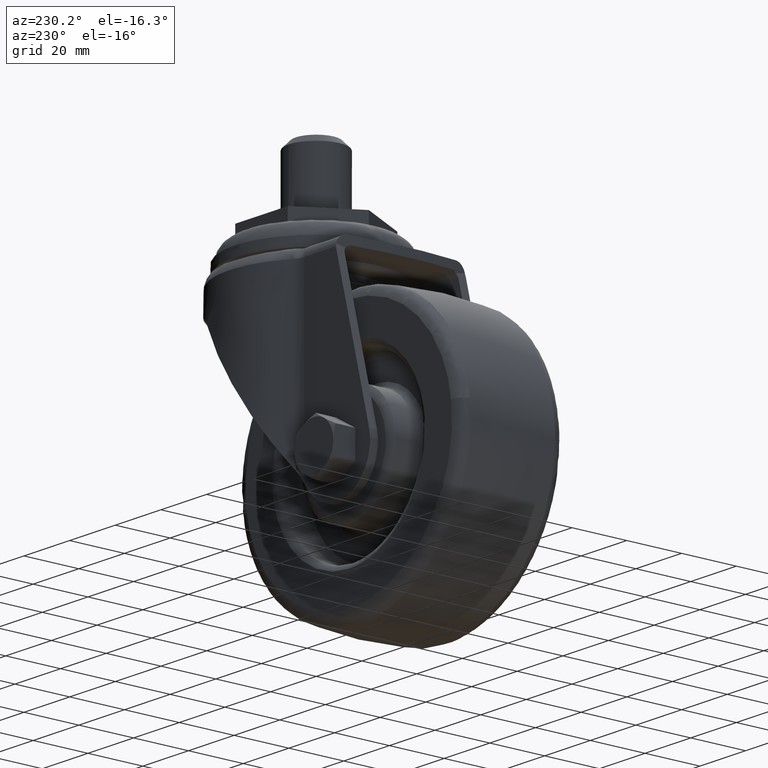
[diagram: clean part render]
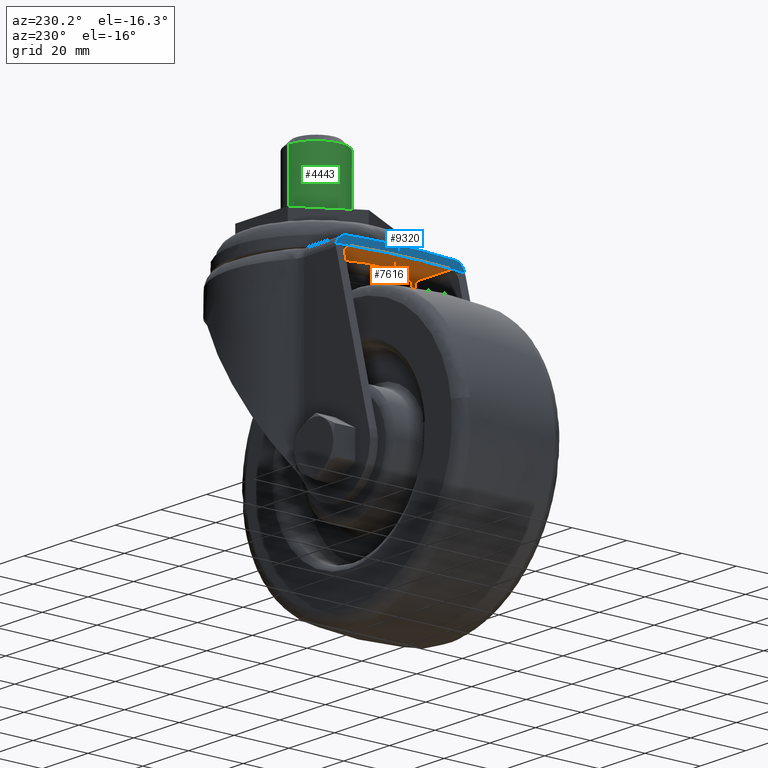
[diagram: same view with three faces highlighted in distinct colors, each labeled with its STEP entity id]
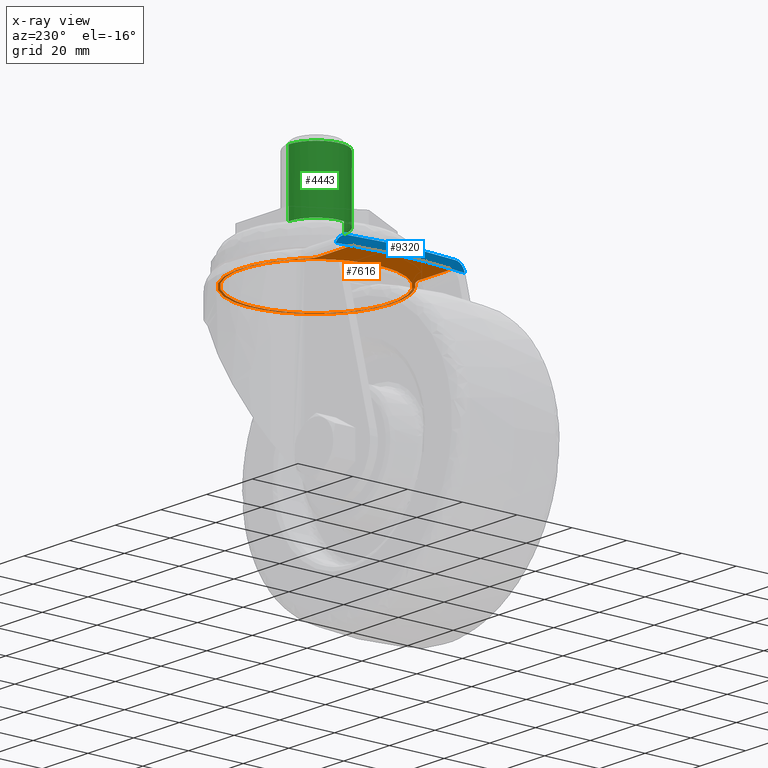
[diagram: x-ray of the same camera — body ghosted, the three highlighted faces saturated]
A machine part, auxiliary view with three faces highlighted in distinct colors.
The next image is the same camera in x-ray (body ghosted, the three faces saturated) — at least one of them is partly hidden behind the body in this view.
Their STEP definitions:

[orange] entity #7616 — the highlighted face is a freeform B-spline surface patch.
#5952=CARTESIAN_POINT('',(-22.796853988553408,14.467323464432161,-12.600000000002099));
#5953=VERTEX_POINT('',#5952);
#5967=CARTESIAN_POINT('',(27.0,1.421085E-014,-12.600000000000000));
#5968=VERTEX_POINT('',#5967);
#5969=CARTESIAN_POINT('',(-22.796853988553408,14.467323464432161,-12.600000000002099));
#5970=CARTESIAN_POINT('',(-22.020493863242969,15.690864298927000,-12.600000000002129));
#5971=CARTESIAN_POINT('',(-20.352111381234199,17.903595143512579,-12.600000000002000));
#5972=CARTESIAN_POINT('',(-17.422341330601210,20.752214060447539,-12.600000000001961));
#5973=CARTESIAN_POINT('',(-13.815082307112741,23.357379680097299,-12.600000000001851));
#5974=CARTESIAN_POINT('',(-10.007212724860461,25.205434411744289,-12.600000000001790));
#5975=CARTESIAN_POINT('',(-5.530705156512103,26.545397302356740,-12.600000000001490));
#5976=CARTESIAN_POINT('',(-1.742118387407928,27.049776726613828,-12.600000000001460));
#5977=CARTESIAN_POINT('',(2.247680131031413,26.975434499490781,-12.600000000001280));
#5978=CARTESIAN_POINT('',(5.258587569921330,26.545439318997730,-12.600000000001151));
#5979=CARTESIAN_POINT('',(8.546153651788616,25.679329694200071,-12.600000000000991));
#5980=CARTESIAN_POINT('',(12.262990242356560,24.213119278474689,-12.600000000000961));
#5981=CARTESIAN_POINT('',(16.255694175472200,21.754431939404419,-12.600000000000330));
#5982=CARTESIAN_POINT('',(19.986902765335799,18.360556670713759,-12.600000000001559));
#5983=CARTESIAN_POINT('',(22.624267085910439,14.938329951140860,-12.600000000000041));
#5984=CARTESIAN_POINT('',(24.475275970271230,11.554852887583349,-12.600000000000250));
#5985=CARTESIAN_POINT('',(25.618956882249481,8.690316943360980,-12.600000000000099));
#5986=CARTESIAN_POINT('',(26.677693325478732,4.890424133856211,-12.600000000000650));
#5987=CARTESIAN_POINT('',(27.000392518057620,1.992485687540145,-12.599999999998850));
#5988=CARTESIAN_POINT('',(27.0,1.421085E-014,-12.600000000000000));
#5989=B_SPLINE_CURVE_WITH_KNOTS('',3,(#5969,#5970,#5971,#5972,#5973,#5974,#5975,#5976,#5977,#5978,#5979,#5980,#5981,#5982,#5983,#5984,#5985,#5986,#5987,#5988),.UNSPECIFIED.,.F.,.U.,(4,1,1,1,1,1,1,1,1,1,1,1,1,1,1,1,1,4),(0.000000209517779,4.347176370044735,8.286824742924566,12.226467091906240,17.660468046819350,20.920864931117158,26.218959532733951,29.071673122288072,32.875542221319087,35.320788348848097,39.260452972143902,44.830314299170432,49.313365229695478,54.339809455076463,57.736061008023682,60.860579434036950,63.577594748134182,69.554934717325835),.UNSPECIFIED.);
#5990=EDGE_CURVE('',#5953,#5968,#5989,.T.);
#5992=CARTESIAN_POINT('',(22.796853988553408,-14.467323464432130,-12.600000000002090));
#5993=VERTEX_POINT('',#5992);
#5994=CARTESIAN_POINT('',(27.0,1.421085E-014,-12.600000000000000));
#5995=CARTESIAN_POINT('',(26.999999999999474,-7.844225131761333,-12.600000000001042));
#5996=CARTESIAN_POINT('',(22.796853988553405,-14.467323464432123,-12.600000000002098));
#6004=(BOUNDED_CURVE()B_SPLINE_CURVE(2,(#5994,#5995,#5996),.UNSPECIFIED.,.F.,.U.)B_SPLINE_CURVE_WITH_KNOTS((3,3),(0.500000000000000,0.591683542668389),.UNSPECIFIED.)CURVE()GEOMETRIC_REPRESENTATION_ITEM()RATIONAL_B_SPLINE_CURVE((1.0,0.892586048302540,0.863956829594155))REPRESENTATION_ITEM(''));
#6005=EDGE_CURVE('',#5968,#5993,#6004,.T.);
#6054=CARTESIAN_POINT('',(-27.000000000000011,1.421085E-014,-12.600000000000000));
#6055=VERTEX_POINT('',#6054);
#6056=CARTESIAN_POINT('',(22.796853988553408,-14.467323464432130,-12.600000000002090));
#6057=CARTESIAN_POINT('',(22.117513735372970,-15.537899178848560,-12.600000000002099));
#6058=CARTESIAN_POINT('',(20.580650444332662,-17.619601023281440,-12.600000000001980));
#6059=CARTESIAN_POINT('',(18.155522146054629,-20.074383251440420,-12.600000000002071));
#6060=CARTESIAN_POINT('',(15.491917200334299,-22.187721362302771,-12.600000000001851));
#6061=CARTESIAN_POINT('',(12.830230873314211,-23.837982022737691,-12.600000000001771));
#6062=CARTESIAN_POINT('',(9.984316794231031,-25.140363890608342,-12.600000000001829));
#6063=CARTESIAN_POINT('',(6.502751730525052,-26.308072938401011,-12.600000000001531));
#6064=CARTESIAN_POINT('',(2.740870965175026,-26.983354340600851,-12.600000000001470));
#6065=CARTESIAN_POINT('',(-1.842091149957168,-27.047992887530569,-12.600000000001300));
#6066=CARTESIAN_POINT('',(-5.758119558192795,-26.488765974747871,-12.600000000001090));
#6067=CARTESIAN_POINT('',(-9.187364106990724,-25.445313388153501,-12.600000000001151));
#6068=CARTESIAN_POINT('',(-12.606009180235359,-23.986068639796610,-12.599999999999850));
#6069=CARTESIAN_POINT('',(-16.026076059018500,-21.903764628620429,-12.600000000003639));
#6070=CARTESIAN_POINT('',(-19.534010614258200,-18.808283422252359,-12.599999999996060));
#6071=CARTESIAN_POINT('',(-22.155861239364469,-15.610759154115160,-12.600000000002430));
#6072=CARTESIAN_POINT('',(-24.032852100204071,-12.449593176683321,-12.599999999999820));
#6073=CARTESIAN_POINT('',(-25.349504906595300,-9.461895149826541,-12.600000000000030));
#6074=CARTESIAN_POINT('',(-26.604035698074661,-5.433711451636000,-12.600000000000669));
#6075=CARTESIAN_POINT('',(-27.000601681272130,-2.173634430688280,-12.599999999998960));
#6076=CARTESIAN_POINT('',(-27.000000000000011,1.421085E-014,-12.600000000000000));
#6077=B_SPLINE_CURVE_WITH_KNOTS('',3,(#6056,#6057,#6058,#6059,#6060,#6061,#6062,#6063,#6064,#6065,#6066,#6067,#6068,#6069,#6070,#6071,#6072,#6073,#6074,#6075,#6076),.UNSPECIFIED.,.F.,.U.,(4,1,1,1,1,1,1,1,1,1,1,1,1,1,1,1,1,1,4),(0.000000209516983,3.803776195185336,7.743424263214614,10.324583967102219,13.992542915609290,17.117088090678511,19.698197968816100,24.996379177937651,28.528278461311189,33.418920985284259,36.815189612630213,39.260452972144464,44.558614961522657,48.769966525709577,53.253019537708873,56.920977273750857,59.773823504263028,63.034231412825989,69.554934717325807),.UNSPECIFIED.);
#6078=EDGE_CURVE('',#5993,#6055,#6077,.T.);
#6080=CARTESIAN_POINT('',(-27.000000000000011,1.421085E-014,-12.600000000000000));
#6081=CARTESIAN_POINT('',(-26.999999999999474,7.844225131761364,-12.600000000001055));
#6082=CARTESIAN_POINT('',(-22.796853988553405,14.467323464432159,-12.600000000002098));
#6090=(BOUNDED_CURVE()B_SPLINE_CURVE(2,(#6080,#6081,#6082),.UNSPECIFIED.,.F.,.U.)B_SPLINE_CURVE_WITH_KNOTS((3,3),(0.0,0.091683542668389),.UNSPECIFIED.)CURVE()GEOMETRIC_REPRESENTATION_ITEM()RATIONAL_B_SPLINE_CURVE((1.0,0.892586048302540,0.863956829594155))REPRESENTATION_ITEM(''));
#6091=EDGE_CURVE('',#6055,#5953,#6090,.T.);
#6560=CARTESIAN_POINT('',(-17.206130066668312,21.820722345972001,-12.600000000000000));
#6561=VERTEX_POINT('',#6560);
#6571=CARTESIAN_POINT('',(-23.200042282470001,18.300000000000001,-12.600000000000000));
#6572=VERTEX_POINT('',#6571);
#6573=CARTESIAN_POINT('',(-23.200042282470001,18.300000000000001,-12.600000000000000));
#6574=CARTESIAN_POINT('',(-22.884882251813600,18.299940183875151,-12.600000000000010));
#6575=CARTESIAN_POINT('',(-22.551575814278301,18.338716590963390,-12.600000000000010));
#6576=CARTESIAN_POINT('',(-22.208241844122949,18.416639695658532,-12.600000000000000));
#6577=CARTESIAN_POINT('',(-22.154330177780221,18.430166216352280,-12.600000000000000));
#6578=CARTESIAN_POINT('',(-22.082265280164510,18.447542847228640,-12.600000000000000));
#6579=CARTESIAN_POINT('',(-21.813826293969271,18.520122325260811,-12.600000000000010));
#6580=CARTESIAN_POINT('',(-21.358887851152769,18.681682106491959,-12.599999999999991));
#6581=CARTESIAN_POINT('',(-20.625042223209189,19.039972527476369,-12.600000000000030));
#6582=CARTESIAN_POINT('',(-20.096129064043041,19.385467096497930,-12.599999999999980));
#6583=CARTESIAN_POINT('',(-19.695070367716490,19.684627115052638,-12.600000000000000));
#6584=CARTESIAN_POINT('',(-19.447092496409098,19.879138771761649,-12.600000000000010));
#6585=CARTESIAN_POINT('',(-19.049022093590700,20.212224120182562,-12.600000000000000));
#6586=CARTESIAN_POINT('',(-18.730012969699349,20.495027258238750,-12.600000000000000));
#6587=CARTESIAN_POINT('',(-18.440755489580209,20.755591980904772,-12.600000000000000));
#6588=CARTESIAN_POINT('',(-18.331402327849890,20.855835698957641,-12.600000000000000));
#6589=CARTESIAN_POINT('',(-18.083109963918261,21.078746932717301,-12.600000000000010));
#6590=CARTESIAN_POINT('',(-17.847672336269071,21.288154604139550,-12.599999999999961));
#6591=CARTESIAN_POINT('',(-17.510279458038621,21.577992212909582,-12.600000000000200));
#6592=CARTESIAN_POINT('',(-17.309215872006359,21.742010383455359,-12.599999999999330));
#6593=CARTESIAN_POINT('',(-17.206130066668312,21.820722345972001,-12.600000000000000));
#6594=B_SPLINE_CURVE_WITH_KNOTS('',3,(#6573,#6574,#6575,#6576,#6577,#6578,#6579,#6580,#6581,#6582,#6583,#6584,#6585,#6586,#6587,#6588,#6589,#6590,#6591,#6592,#6593),.UNSPECIFIED.,.F.,.U.,(4,1,1,1,1,1,1,1,1,1,1,1,2,2,1,1,4),(0.000027262821525,0.945294903960264,1.000816565755690,1.056417917823303,1.112019269890919,1.223222338353205,1.890429325326533,2.557741817034610,3.669735711737038,3.781033573207834,4.059129671180316,4.615055324770191,5.337985770226001,5.783012668681964,6.339025959666858,6.728270681001271,7.117337516679103),.UNSPECIFIED.);
#6595=EDGE_CURVE('',#6572,#6561,#6594,.T.);
#6670=CARTESIAN_POINT('',(-37.549176507388303,18.300000000000001,-12.600000000000000));
#6671=VERTEX_POINT('',#6670);
#6672=CARTESIAN_POINT('',(-37.549176507388303,18.300000000000001,-12.600000000000000));
#6673=CARTESIAN_POINT('',(-23.200042282470001,18.300000000000001,-12.600000000000000));
#6674=QUASI_UNIFORM_CURVE('',1,(#6672,#6673),.UNSPECIFIED.,.F.,.U.);
#6675=EDGE_CURVE('',#6671,#6572,#6674,.T.);
#6937=CARTESIAN_POINT('',(-17.206130066668312,-21.820722345971902,-12.600000000000000));
#6938=VERTEX_POINT('',#6937);
#6952=CARTESIAN_POINT('',(-17.206130066668312,21.820722345972001,-12.600000000000000));
#6953=CARTESIAN_POINT('',(-16.945764589122891,22.018787179444999,-12.600000000000000));
#6954=CARTESIAN_POINT('',(-16.682060021533228,22.212202171664551,-12.599999999999920));
#6955=CARTESIAN_POINT('',(-16.147991767696279,22.589759017543269,-12.599999999999920));
#6956=CARTESIAN_POINT('',(-15.877331097611590,22.774087133635671,-12.599999999999920));
#6957=CARTESIAN_POINT('',(-15.058670720995600,23.311024379633022,-12.599999999999920));
#6958=CARTESIAN_POINT('',(-14.503440433897840,23.648068557316360,-12.599999999999920));
#6959=CARTESIAN_POINT('',(-12.810179589844591,24.598228649842270,-12.599999999999911));
#6960=CARTESIAN_POINT('',(-11.644706699095780,25.150654426441889,-12.599999999999920));
#6961=CARTESIAN_POINT('',(-9.842272922263110,25.859372940687049,-12.599999999999920));
#6962=CARTESIAN_POINT('',(-9.232391860445548,26.075554108037299,-12.599999999999911));
#6963=CARTESIAN_POINT('',(-8.303760593585912,26.369285051617080,-12.599999999999920));
#6964=CARTESIAN_POINT('',(-7.991913145277651,26.462100630805971,-12.599999999999920));
#6965=CARTESIAN_POINT('',(-7.363550601869688,26.637409047277860,-12.599999999999911));
#6966=CARTESIAN_POINT('',(-7.046562208305985,26.719999723493061,-12.599999999999920));
#6967=CARTESIAN_POINT('',(-5.461457732187167,27.104043661741489,-12.599999999999911));
#6968=CARTESIAN_POINT('',(-4.185582268445432,27.321499657806299,-12.599999999999920));
#6969=CARTESIAN_POINT('',(-1.618806353944401,27.583291666246950,-12.599999999999911));
#6970=CARTESIAN_POINT('',(-0.327904775911057,27.627614690014749,-12.599999999999911));
#6971=CARTESIAN_POINT('',(1.295313524382467,27.572505861493529,-12.599999999999920));
#6972=CARTESIAN_POINT('',(1.620438911512220,27.555933569683560,-12.599999999999920));
#6973=CARTESIAN_POINT('',(2.108860044719857,27.522628799272830,-12.599999999999911));
#6974=CARTESIAN_POINT('',(2.271926924588069,27.510107006020000,-12.599999999999911));
#6975=CARTESIAN_POINT('',(2.597624995343788,27.482282728759571,-12.599999999999911));
#6976=CARTESIAN_POINT('',(2.760125878295762,27.466994132409560,-12.599999999999920));
#6977=CARTESIAN_POINT('',(3.570903053156702,27.383722323639510,-12.599999999999911));
#6978=CARTESIAN_POINT('',(4.214004165001446,27.295278485294329,-12.599999999999920));
#6979=CARTESIAN_POINT('',(6.127103801074773,26.965883917542570,-12.599999999999911));
#6980=CARTESIAN_POINT('',(7.380974029027525,26.661168249947590,-12.599999999999911));
#6981=CARTESIAN_POINT('',(9.229498482627639,26.076468816233380,-12.599999999999911));
#6982=CARTESIAN_POINT('',(9.840274293031412,25.860223453595250,-12.599999999999920));
#6983=CARTESIAN_POINT('',(10.748164007328720,25.503143263669529,-12.599999999999920));
#6984=CARTESIAN_POINT('',(11.049413637499059,25.378659470979461,-12.599999999999920));
#6985=CARTESIAN_POINT('',(11.499183572531930,25.183613376492499,-12.599999999999920));
#6986=CARTESIAN_POINT('',(11.648727442179190,25.117219547538600,-12.599999999999920));
#6987=CARTESIAN_POINT('',(11.945963882623470,24.982167686509481,-12.599999999999920));
#6988=CARTESIAN_POINT('',(12.093800540453170,24.913447989258660,-12.599999999999920));
#6989=CARTESIAN_POINT('',(13.417344231286201,24.284299872326130,-12.599999999999920));
#6990=CARTESIAN_POINT('',(14.544385674388639,23.649539111445581,-12.599999999999920));
#6991=CARTESIAN_POINT('',(16.701683281510292,22.232186721868260,-12.599999999999920));
#6992=CARTESIAN_POINT('',(17.731946692709531,21.449606162591579,-12.599999999999911));
#6993=CARTESIAN_POINT('',(18.834522145864039,20.482948802050331,-12.599999999999911));
#6994=CARTESIAN_POINT('',(18.956242324226171,20.374338515439600,-12.599999999999920));
#6995=CARTESIAN_POINT('',(19.198092296769090,20.154688772452680,-12.599999999999911));
#6996=CARTESIAN_POINT('',(19.318302163093549,20.043570879473201,-12.599999999999920));
#6997=CARTESIAN_POINT('',(19.675198611129382,19.707801889046671,-12.599999999999911));
#6998=CARTESIAN_POINT('',(19.908537822482000,19.480397693779729,-12.599999999999911));
#6999=CARTESIAN_POINT('',(20.594956040985149,18.787646768423532,-12.599999999999920));
#7000=CARTESIAN_POINT('',(21.034452274270208,18.311774594610409,-12.599999999999911));
#7001=CARTESIAN_POINT('',(22.299374173122612,16.842648558619189,-12.599999999999920));
#7002=CARTESIAN_POINT('',(23.071493588592730,15.808087085706640,-12.599999999999920));
#7003=CARTESIAN_POINT('',(24.121315615752859,14.172277747988300,-12.599999999999920));
#7004=CARTESIAN_POINT('',(24.453132737559660,13.612963823666281,-12.599999999999920));
#7005=CARTESIAN_POINT('',(24.844561359449671,12.895732836096320,-12.599999999999920));
#7006=CARTESIAN_POINT('',(24.921699656264099,12.751333437419749,-12.599999999999920));
#7007=CARTESIAN_POINT('',(25.073021664755331,12.461869994217009,-12.599999999999920));
#7008=CARTESIAN_POINT('',(25.295805074676821,12.026259216415340,-12.599999999999920));
#7009=CARTESIAN_POINT('',(25.506084668478479,11.586433619880459,-12.599999999999920));
#7010=CARTESIAN_POINT('',(26.179548921487129,10.111089405741421,-12.599999999999920));
#7011=CARTESIAN_POINT('',(26.630826766642329,8.901321479469033,-12.599999999999920));
#7012=CARTESIAN_POINT('',(27.177646023485270,7.042815984026421,-12.599999999999911));
#7013=CARTESIAN_POINT('',(27.338156977761319,6.415978516598328,-12.599999999999920));
#7014=CARTESIAN_POINT('',(27.545692180064162,5.464520646650132,-12.599999999999920));
#7015=CARTESIAN_POINT('',(27.609326852303191,5.145499328958640,-12.599999999999920));
#7016=CARTESIAN_POINT('',(27.696340596344118,4.664122960422994,-12.599999999999920));
#7017=CARTESIAN_POINT('',(27.723938445274470,4.503189985903486,-12.599999999999920));
#7018=CARTESIAN_POINT('',(27.776295823198900,4.180367288626679,-12.599999999999920));
#7019=CARTESIAN_POINT('',(27.801027972692541,4.018627711172342,-12.599999999999920));
#7020=CARTESIAN_POINT('',(28.009990992126401,2.564419727963117,-12.599999999999911));
#7021=CARTESIAN_POINT('',(28.100815444941109,1.273001449953279,-12.599999999999911));
#7022=CARTESIAN_POINT('',(28.099173581145472,-1.307496595043730,-12.599999999999920));
#7023=CARTESIAN_POINT('',(28.006697519157989,-2.596576237694769,-12.599999999999920));
#7024=CARTESIAN_POINT('',(27.773692298353492,-4.206427816423275,-12.599999999999920));
#7025=CARTESIAN_POINT('',(27.721193212384339,-4.528322882139623,-12.599999999999920));
#7026=CARTESIAN_POINT('',(27.633458190714268,-5.011050828031485,-12.599999999999920));
#7027=CARTESIAN_POINT('',(27.602754589425949,-5.171710228741088,-12.599999999999920));
#7028=CARTESIAN_POINT('',(27.538596930012840,-5.491759507068004,-12.599999999999920));
#7029=CARTESIAN_POINT('',(27.505121602849790,-5.651267587874124,-12.599999999999911));
#7030=CARTESIAN_POINT('',(27.330820919538539,-6.446246816741725,-12.599999999999920));
#7031=CARTESIAN_POINT('',(27.169250664337110,-7.074044516542791,-12.599999999999911));
#7032=CARTESIAN_POINT('',(26.619722436762231,-8.933461917653785,-12.599999999999911));
#7033=CARTESIAN_POINT('',(26.167256334836239,-10.141220341392421,-12.599999999999911));
#7034=CARTESIAN_POINT('',(25.359804244006970,-11.905232823215529,-12.599999999999920));
#7035=CARTESIAN_POINT('',(25.069117106461679,-12.485270747774040,-12.599999999999920));
#7036=CARTESIAN_POINT('',(24.678276742574571,-13.200152887185469,-12.599999999999920));
#7037=CARTESIAN_POINT('',(24.598732936498159,-13.342620437282291,-12.599999999999920));
#7038=CARTESIAN_POINT('',(24.436873023589509,-13.626530075440289,-12.599999999999920));
#7039=CARTESIAN_POINT('',(24.354521659746968,-13.768025220215300,-12.599999999999920));
#7040=CARTESIAN_POINT('',(24.104313826036339,-14.189245832943980,-12.599999999999920));
#7041=CARTESIAN_POINT('',(23.932989948649890,-14.466271608573280,-12.599999999999920));
#7042=CARTESIAN_POINT('',(23.054161343086289,-15.832782607969261,-12.599999999999911));
#7043=CARTESIAN_POINT('',(22.280359087898798,-16.866690940904689,-12.599999999999911));
#7044=CARTESIAN_POINT('',(20.595570852363419,-18.819507164664390,-12.599999999999920));
#7045=CARTESIAN_POINT('',(19.684582838391169,-19.738413350711351,-12.599999999999920));
#7046=CARTESIAN_POINT('',(18.457687504210082,-20.813141723353301,-12.599999999999920));
#7047=CARTESIAN_POINT('',(18.207484803090860,-21.024674913467511,-12.599999999999920));
#7048=CARTESIAN_POINT('',(17.701967592392020,-21.437109656135551,-12.599999999999920));
#7049=CARTESIAN_POINT('',(17.446289842036411,-21.638352395317650,-12.599999999999920));
#7050=CARTESIAN_POINT('',(16.670639548008680,-22.227395964147110,-12.599999999999920));
#7051=CARTESIAN_POINT('',(16.142060607412770,-22.600530287417062,-12.599999999999911));
#7052=CARTESIAN_POINT('',(14.522604604070169,-23.662471046769198,-12.599999999999920));
#7053=CARTESIAN_POINT('',(13.398166475187020,-24.294084723223339,-12.599999999999920));
#7054=CARTESIAN_POINT('',(11.644211862759001,-25.126821005326509,-12.599999999999911));
#7055=CARTESIAN_POINT('',(11.048304623461011,-25.385218472854969,-12.599999999999920));
#7056=CARTESIAN_POINT('',(10.289030586278461,-25.683692751133862,-12.599999999999920));
#7057=CARTESIAN_POINT('',(10.136337047909620,-25.742203920867961,-12.599999999999920));
#7058=CARTESIAN_POINT('',(9.830057399134928,-25.856543594331381,-12.599999999999920));
#7059=CARTESIAN_POINT('',(9.369821932272791,-26.023841013331850,-12.599999999999920));
#7060=CARTESIAN_POINT('',(8.907160856203747,-26.178617640590510,-12.599999999999911));
#7061=CARTESIAN_POINT('',(7.359646038677316,-26.667123603405368,-12.599999999999920));
#7062=CARTESIAN_POINT('',(6.104714676685428,-26.970591289398971,-12.599999999999920));
#7063=CARTESIAN_POINT('',(3.561761349507301,-27.406715736841239,-12.599999999999920));
#7064=CARTESIAN_POINT('',(2.273741429752526,-27.539383056635849,-12.599999999999920));
#7065=CARTESIAN_POINT('',(0.805441569397754,-27.589125204457559,-12.599999999999911));
#7066=CARTESIAN_POINT('',(0.641869994904814,-27.593264937801450,-12.599999999999920));
#7067=CARTESIAN_POINT('',(0.315165860765234,-27.598730430051582,-12.599999999999920));
#7068=CARTESIAN_POINT('',(-0.174277822767608,-27.602718932882372,-12.599999999999920));
#7069=CARTESIAN_POINT('',(-0.661899114340674,-27.594182428675730,-12.599999999999920));
#7070=CARTESIAN_POINT('',(-1.634743298806898,-27.560625611616199,-12.599999999999920));
#7071=CARTESIAN_POINT('',(-2.280111099156059,-27.516295752330709,-12.599999999999920));
#7072=CARTESIAN_POINT('',(-4.206772428136375,-27.318412330724389,-12.599999999999920));
#7073=CARTESIAN_POINT('',(-5.478668621377945,-27.100272392649298,-12.599999999999920));
#7074=CARTESIAN_POINT('',(-7.367450926518855,-26.642052528266589,-12.599999999999920));
#7075=CARTESIAN_POINT('',(-7.993857009363005,-26.467401832173771,-12.599999999999911));
#7076=CARTESIAN_POINT('',(-8.772765070864752,-26.220912968419618,-12.599999999999920));
#7077=CARTESIAN_POINT('',(-8.928327456507196,-26.170205350028819,-12.599999999999920));
#7078=CARTESIAN_POINT('',(-9.237832837097509,-26.066362700574381,-12.599999999999920));
#7079=CARTESIAN_POINT('',(-9.700117673562129,-25.906815297585052,-12.599999999999920));
#7080=CARTESIAN_POINT('',(-10.156527064722020,-25.736002467239999,-12.599999999999911));
#7081=CARTESIAN_POINT('',(-11.664984336596140,-25.141878116572290,-12.599999999999920));
#7082=CARTESIAN_POINT('',(-12.830631310528220,-24.587738425444460,-12.599999999999920));
#7083=CARTESIAN_POINT('',(-15.080467337718320,-23.323273726109601,-12.599999999999920));
#7084=CARTESIAN_POINT('',(-16.164672040995690,-22.612978724846119,-12.600000000000000));
#7085=CARTESIAN_POINT('',(-17.206130066668440,-21.820722345971930,-12.600000000000000));
#7086=B_SPLINE_CURVE_WITH_KNOTS('',3,(#6952,#6953,#6954,#6955,#6956,#6957,#6958,#6959,#6960,#6961,#6962,#6963,#6964,#6965,#6966,#6967,#6968,#6969,#6970,#6971,#6972,#6973,#6974,#6975,#6976,#6977,#6978,#6979,#6980,#6981,#6982,#6983,#6984,#6985,#6986,#6987,#6988,#6989,#6990,#6991,#6992,#6993,#6994,#6995,#6996,#6997,#6998,#6999,#7000,#7001,#7002,#7003,#7004,#7005,#7006,#7007,#7008,#7009,#7010,#7011,#7012,#7013,#7014,#7015,#7016,#7017,#7018,#7019,#7020,#7021,#7022,#7023,#7024,#7025,#7026,#7027,#7028,#7029,#7030,#7031,#7032,#7033,#7034,#7035,#7036,#7037,#7038,#7039,#7040,#7041,#7042,#7043,#7044,#7045,#7046,#7047,#7048,#7049,#7050,#7051,#7052,#7053,#7054,#7055,#7056,#7057,#7058,#7059,#7060,#7061,#7062,#7063,#7064,#7065,#7066,#7067,#7068,#7069,#7070,#7071,#7072,#7073,#7074,#7075,#7076,#7077,#7078,#7079,#7080,#7081,#7082,#7083,#7084,#7085),.UNSPECIFIED.,.F.,.U.,(4,2,2,2,2,2,2,2,2,2,2,2,2,2,2,2,2,2,2,2,2,2,2,2,2,2,2,2,1,2,2,2,2,2,2,2,2,2,2,2,2,2,2,2,2,2,2,2,2,2,2,2,2,2,1,2,2,2,2,1,2,2,2,2,2,1,2,2,4),(0.0,0.007812500000000,0.015625000000000,0.031250000000000,0.062499999999999,0.078124999999999,0.085937499999999,0.093749999999999,0.124999999999999,0.156249999999999,0.164062499999999,0.167968749999999,0.171874999999999,0.187499999999998,0.218749999999998,0.234374999999998,0.242187499999998,0.246093749999998,0.249999999999998,0.281249999999997,0.312499999999997,0.316406249999997,0.320312499999997,0.328124999999997,0.343749999999997,0.374999999999996,0.390624999999996,0.394531249999996,0.398437499999996,0.406249999999996,0.437499999999996,0.453124999999996,0.460937499999996,0.464843749999996,0.468749999999996,0.499999999999996,0.531249999999995,0.539062499999995,0.542968749999995,0.546874999999995,0.562499999999995,0.593749999999995,0.609374999999995,0.613281249999995,0.617187499999995,0.624999999999995,0.656249999999996,0.687499999999996,0.695312499999996,0.703124999999996,0.718749999999996,0.749999999999997,0.765624999999997,0.769531249999997,0.773437499999997,0.781249999999997,0.812499999999997,0.843749999999998,0.847656249999998,0.851562499999998,0.859374999999998,0.874999999999998,0.906249999999998,0.921874999999998,0.925781249999998,0.929687499999999,0.937499999999999,0.968749999999999,1.0),.UNSPECIFIED.);
#7087=EDGE_CURVE('',#6561,#6938,#7086,.T.);
#7147=CARTESIAN_POINT('',(-23.200042282470051,-18.300000000000001,-12.600000000000000));
#7148=VERTEX_POINT('',#7147);
#7162=CARTESIAN_POINT('',(-17.206130066668312,-21.820722345971902,-12.600000000000000));
#7163=CARTESIAN_POINT('',(-17.265043436962589,-21.775876114050568,-12.600000000000000));
#7164=CARTESIAN_POINT('',(-17.453444309348502,-21.625788991618929,-12.600000000000000));
#7165=CARTESIAN_POINT('',(-17.834417130838059,-21.301380719183449,-12.600000000000000));
#7166=CARTESIAN_POINT('',(-18.221539973098899,-20.955443147895721,-12.600000000000000));
#7167=CARTESIAN_POINT('',(-18.701730710591050,-20.519078129938450,-12.600000000000010));
#7168=CARTESIAN_POINT('',(-19.035399880220119,-20.224639664672139,-12.600000000000000));
#7169=CARTESIAN_POINT('',(-19.326661346329821,-19.980661312946879,-12.600000000000000));
#7170=CARTESIAN_POINT('',(-19.412898821529840,-19.910415075708769,-12.600000000000000));
#7171=CARTESIAN_POINT('',(-19.477189930715809,-19.857227330744269,-12.600000000000000));
#7172=CARTESIAN_POINT('',(-19.542711295876899,-19.805668469285759,-12.600000000000000));
#7173=CARTESIAN_POINT('',(-19.600308306240919,-19.759053302756850,-12.600000000000000));
#7174=CARTESIAN_POINT('',(-19.651683909721161,-19.719430969755159,-12.600000000000000));
#7175=CARTESIAN_POINT('',(-19.754209301803709,-19.639869003085540,-12.599999999999991));
#7176=CARTESIAN_POINT('',(-20.051936342086378,-19.419057619161460,-12.599999999999961));
#7177=CARTESIAN_POINT('',(-20.594195824953118,-19.061761855708362,-12.600000000000010));
#7178=CARTESIAN_POINT('',(-21.288801295013620,-18.706498530257939,-12.600000000000010));
#7179=CARTESIAN_POINT('',(-21.813822632295810,-18.520025689395300,-12.600000000000000));
#7180=CARTESIAN_POINT('',(-22.082247266352759,-18.447485303236888,-12.600000000000000));
#7181=CARTESIAN_POINT('',(-22.154316016361271,-18.430111934908140,-12.600000000000000));
#7182=CARTESIAN_POINT('',(-22.208233324000911,-18.416594641498580,-12.599999999999991));
#7183=CARTESIAN_POINT('',(-22.551543109623900,-18.338653987381790,-12.600000000000041));
#7184=CARTESIAN_POINT('',(-22.884905448780060,-18.299976877030790,-12.600000000000019));
#7185=CARTESIAN_POINT('',(-23.200042282470051,-18.300000000000001,-12.600000000000000));
#7186=B_SPLINE_CURVE_WITH_KNOTS('',3,(#7162,#7163,#7164,#7165,#7166,#7167,#7168,#7169,#7170,#7171,#7172,#7173,#7174,#7175,#7176,#7177,#7178,#7179,#7180,#7181,#7182,#7183,#7184,#7185),.UNSPECIFIED.,.F.,.U.,(4,1,1,1,1,1,1,1,1,1,1,1,1,1,1,1,1,1,1,1,1,4),(0.000002183354492,0.222113652734660,0.722549446858146,1.500999677526146,1.779552620358096,2.669158135901511,2.835844394306624,2.919346789503790,3.002849184700954,3.086156544158014,3.169463903615073,3.225132086271170,3.280800268927265,3.558746158322138,4.337184824678420,5.226952577153144,5.894164662665630,6.005368501968514,6.060970236045608,6.116571970122704,6.172093459045035,7.117368956539600),.UNSPECIFIED.);
#7187=EDGE_CURVE('',#6938,#7148,#7186,.T.);
#7242=CARTESIAN_POINT('',(-37.549176507388303,-18.300000000000001,-12.600000000000000));
#7243=VERTEX_POINT('',#7242);
#7266=CARTESIAN_POINT('',(-23.200042282470051,-18.300000000000001,-12.600000000000000));
#7267=CARTESIAN_POINT('',(-37.549176507388303,-18.300000000000001,-12.600000000000000));
#7268=QUASI_UNIFORM_CURVE('',1,(#7266,#7267),.UNSPECIFIED.,.F.,.U.);
#7269=EDGE_CURVE('',#7148,#7243,#7268,.T.);
#7585=CARTESIAN_POINT('',(31.436659899770770,-30.357156325074101,-12.600000000000000));
#7586=CARTESIAN_POINT('',(-42.036661663635037,-30.357156325074101,-12.600000000000000));
#7587=CARTESIAN_POINT('',(31.436659899770770,30.357206831116969,-12.600000000000000));
#7588=CARTESIAN_POINT('',(-42.036661663635037,30.357206831116969,-12.600000000000000));
#7589=B_SPLINE_SURFACE_WITH_KNOTS('',1,1,((#7585,#7587),(#7586,#7588)),.UNSPECIFIED.,.F.,.F.,.U.,(2,2),(2,2),(0.0,73.473321563405818),(0.0,60.714363156191062),.UNSPECIFIED.);
#7590=ORIENTED_EDGE('',*,*,#7269,.T.);
#7591=CARTESIAN_POINT('',(-37.549176507388303,-18.300000000000001,-12.600000000000000));
#7592=CARTESIAN_POINT('',(-39.859961992042130,3.816392E-014,-12.600000000000001));
#7593=CARTESIAN_POINT('',(-37.549176507388133,18.300000000000001,-12.600000000000000));
#7601=(BOUNDED_CURVE()B_SPLINE_CURVE(2,(#7591,#7592,#7593),.UNSPECIFIED.,.F.,.U.)CURVE()GEOMETRIC_REPRESENTATION_ITEM()QUASI_UNIFORM_CURVE()RATIONAL_B_SPLINE_CURVE((1.0,0.992121725113618,1.0))REPRESENTATION_ITEM(''));
#7602=EDGE_CURVE('',#7243,#6671,#7601,.T.);
#7603=ORIENTED_EDGE('',*,*,#7602,.T.);
#7604=ORIENTED_EDGE('',*,*,#6675,.T.);
#7605=ORIENTED_EDGE('',*,*,#6595,.T.);
#7606=ORIENTED_EDGE('',*,*,#7087,.T.);
#7607=ORIENTED_EDGE('',*,*,#7187,.T.);
#7608=EDGE_LOOP('',(#7590,#7603,#7604,#7605,#7606,#7607));
#7609=FACE_OUTER_BOUND('',#7608,.T.);
#7610=ORIENTED_EDGE('',*,*,#6091,.F.);
#7611=ORIENTED_EDGE('',*,*,#6078,.F.);
#7612=ORIENTED_EDGE('',*,*,#6005,.F.);
#7613=ORIENTED_EDGE('',*,*,#5990,.F.);
#7614=EDGE_LOOP('',(#7610,#7611,#7612,#7613));
#7615=FACE_BOUND('',#7614,.T.);
#7616=ADVANCED_FACE('',(#7609,#7615),#7589,.T.);

[blue] entity #9320 — the highlighted face is a freeform B-spline surface patch.
#6670=CARTESIAN_POINT('',(-37.549176507388303,18.300000000000001,-12.600000000000000));
#6671=VERTEX_POINT('',#6670);
#7242=CARTESIAN_POINT('',(-37.549176507388303,-18.300000000000001,-12.600000000000000));
#7243=VERTEX_POINT('',#7242);
#7591=CARTESIAN_POINT('',(-37.549176507388303,-18.300000000000001,-12.600000000000000));
#7592=CARTESIAN_POINT('',(-39.859961992042130,3.816392E-014,-12.600000000000001));
#7593=CARTESIAN_POINT('',(-37.549176507388133,18.300000000000001,-12.600000000000000));
#7601=(BOUNDED_CURVE()B_SPLINE_CURVE(2,(#7591,#7592,#7593),.UNSPECIFIED.,.F.,.U.)CURVE()GEOMETRIC_REPRESENTATION_ITEM()QUASI_UNIFORM_CURVE()RATIONAL_B_SPLINE_CURVE((1.0,0.992121725113618,1.0))REPRESENTATION_ITEM(''));
#7602=EDGE_CURVE('',#7243,#6671,#7601,.T.);
#8431=CARTESIAN_POINT('',(-36.789850749211951,23.545776904605901,-12.600000000000000));
#8432=VERTEX_POINT('',#8431);
#8444=CARTESIAN_POINT('',(-37.549176507388303,18.300000000000001,-12.600000000000000));
#8445=CARTESIAN_POINT('',(-37.327821848140978,20.052992777185199,-12.600000000000000));
#8446=CARTESIAN_POINT('',(-37.074657712240658,21.801968842964801,-12.600000000000000));
#8447=CARTESIAN_POINT('',(-36.789850749211773,23.545776904605859,-12.600000000000000));
#8448=QUASI_UNIFORM_CURVE('',3,(#8444,#8445,#8446,#8447),.UNSPECIFIED.,.F.,.U.);
#8449=EDGE_CURVE('',#6671,#8432,#8448,.T.);
#8548=CARTESIAN_POINT('',(-36.789850749211951,-23.545776904605901,-12.600000000000000));
#8549=VERTEX_POINT('',#8548);
#8559=CARTESIAN_POINT('',(-36.789850749211951,-23.545776904605901,-12.600000000000000));
#8560=CARTESIAN_POINT('',(-37.074657712240729,-21.801968842964211,-12.600000000000000));
#8561=CARTESIAN_POINT('',(-37.327821848141049,-20.052992777184649,-12.600000000000000));
#8562=CARTESIAN_POINT('',(-37.549176507388189,-18.299999999999429,-12.600000000000000));
#8563=QUASI_UNIFORM_CURVE('',3,(#8559,#8560,#8561,#8562),.UNSPECIFIED.,.F.,.U.);
#8564=EDGE_CURVE('',#8549,#7243,#8563,.T.);
#8874=CARTESIAN_POINT('',(-37.365516599955953,19.699999999999999,-9.700000000000001));
#8875=VERTEX_POINT('',#8874);
#8876=CARTESIAN_POINT('',(-37.365516599955953,19.699999999999999,-9.700000000000001));
#8877=CARTESIAN_POINT('',(-37.336021079034367,19.916711357381239,-9.700000000000001));
#8878=CARTESIAN_POINT('',(-37.306440857311593,20.130404938673710,-9.717492810055830));
#8879=CARTESIAN_POINT('',(-37.247152760494338,20.552020095863831,-9.785964526804094));
#8880=CARTESIAN_POINT('',(-37.217444599139817,20.759941316674261,-9.836945265382346));
#8881=CARTESIAN_POINT('',(-37.180293307482430,21.016117951139030,-9.922335343624326));
#8882=CARTESIAN_POINT('',(-37.172852175834869,21.067235207841531,-9.940534293293734));
#8883=CARTESIAN_POINT('',(-37.158101263283562,21.168198411186939,-9.978802889008685));
#8884=CARTESIAN_POINT('',(-37.150776766967567,21.218146377241091,-9.998903224589380));
#8885=CARTESIAN_POINT('',(-37.128957638269341,21.366413454798529,-10.062059751396831));
#8886=CARTESIAN_POINT('',(-37.114617036421677,21.463158284242809,-10.107966843848320));
#8887=CARTESIAN_POINT('',(-37.072235576392544,21.747189876901249,-10.256930013975760));
#8888=CARTESIAN_POINT('',(-37.044829116795611,21.928314592352180,-10.371153490967540));
#8889=CARTESIAN_POINT('',(-37.005186696736033,22.187313348265821,-10.565526589946000));
#8890=CARTESIAN_POINT('',(-36.992185467232687,22.271731271098052,-10.634409272973249));
#8891=CARTESIAN_POINT('',(-36.967167685806587,22.433299129022998,-10.777548271115821));
#8892=CARTESIAN_POINT('',(-36.955096275903912,22.510810243255701,-10.852044198151280));
#8893=CARTESIAN_POINT('',(-36.920214183962983,22.733707105571369,-11.084154612920420));
#8894=CARTESIAN_POINT('',(-36.898726673140651,22.869519434969760,-11.250335273046010));
#8895=CARTESIAN_POINT('',(-36.874271206707228,23.022954357246700,-11.472693608896369));
#8896=CARTESIAN_POINT('',(-36.869501021972901,23.052819784307811,-11.517901407309459));
#8897=CARTESIAN_POINT('',(-36.860210380713802,23.110877787385629,-11.609816397110730));
#8898=CARTESIAN_POINT('',(-36.855689414738947,23.139073272194040,-11.656540343986480));
#8899=CARTESIAN_POINT('',(-36.842621844928459,23.220428686509919,-11.797793067961519));
#8900=CARTESIAN_POINT('',(-36.834529778097313,23.270613685230501,-11.893784546094970));
#8901=CARTESIAN_POINT('',(-36.812123038804963,23.409188019547098,-12.187151806700010));
#8902=CARTESIAN_POINT('',(-36.799666413228032,23.485677833081919,-12.389883980677141));
#8903=CARTESIAN_POINT('',(-36.789850749211951,23.545776904605901,-12.600000000000000));
#8904=B_SPLINE_CURVE_WITH_KNOTS('',3,(#8876,#8877,#8878,#8879,#8880,#8881,#8882,#8883,#8884,#8885,#8886,#8887,#8888,#8889,#8890,#8891,#8892,#8893,#8894,#8895,#8896,#8897,#8898,#8899,#8900,#8901,#8902,#8903),.UNSPECIFIED.,.F.,.U.,(4,2,2,2,2,2,2,2,2,2,2,2,2,4),(0.0,0.124999999999999,0.249999999999997,0.281249999999997,0.312499999999997,0.374999999999995,0.499999999999992,0.562499999999991,0.624999999999991,0.749999999999991,0.781249999999991,0.812499999999992,0.874999999999995,1.0),.UNSPECIFIED.);
#8905=EDGE_CURVE('',#8875,#8432,#8904,.T.);
#9244=CARTESIAN_POINT('',(-37.365516599955953,-19.699999999999999,-9.700000000000001));
#9245=VERTEX_POINT('',#9244);
#9251=CARTESIAN_POINT('',(-36.789850749211951,-23.545776904605901,-12.600000000000000));
#9252=CARTESIAN_POINT('',(-36.799665797047432,-23.485681605815191,-12.389897170759371));
#9253=CARTESIAN_POINT('',(-36.812093459027707,-23.409367795054312,-12.187763161489030));
#9254=CARTESIAN_POINT('',(-36.841776308717932,-23.225800697168740,-11.798684892349479));
#9255=CARTESIAN_POINT('',(-36.859032752707137,-23.118544320324681,-11.611742209170840));
#9256=CARTESIAN_POINT('',(-36.883588643409908,-22.964500227211161,-11.387859782912219));
#9257=CARTESIAN_POINT('',(-36.888647823163922,-22.932699131738669,-11.343605880849720));
#9258=CARTESIAN_POINT('',(-36.898969428426973,-22.867673828283060,-11.256891439432019));
#9259=CARTESIAN_POINT('',(-36.904242952500951,-22.834380077650000,-11.214327528864890));
#9260=CARTESIAN_POINT('',(-36.920390983641482,-22.732191946210730,-11.088977897250340));
#9261=CARTESIAN_POINT('',(-36.931592414202790,-22.660994448931561,-11.008530455574361));
#9262=CARTESIAN_POINT('',(-36.966440084548353,-22.438334359948819,-10.776387393340009));
#9263=CARTESIAN_POINT('',(-36.991321953080529,-22.277864024861799,-10.633830383534679));
#9264=CARTESIAN_POINT('',(-37.024393579794449,-22.061835340670040,-10.471276178729781));
#9265=CARTESIAN_POINT('',(-37.031121650533997,-22.017756114461569,-10.439488691401261));
#9266=CARTESIAN_POINT('',(-37.044669162783073,-21.928718565840779,-10.377991427780341));
#9267=CARTESIAN_POINT('',(-37.051494898028267,-21.883719743245049,-10.348244800023080));
#9268=CARTESIAN_POINT('',(-37.072120422043390,-21.747306529025678,-10.261960540271410));
#9269=CARTESIAN_POINT('',(-37.086068196225192,-21.654477690153279,-10.208373707153200));
#9270=CARTESIAN_POINT('',(-37.128455892659723,-21.370430700903679,-10.059201994850291));
#9271=CARTESIAN_POINT('',(-37.157435562929713,-21.173688057080440,-9.975130581019510));
#9272=CARTESIAN_POINT('',(-37.201885431743250,-20.867251476289422,-9.872582311713341));
#9273=CARTESIAN_POINT('',(-37.216908713637139,-20.762909671320699,-9.842301901364197));
#9274=CARTESIAN_POINT('',(-37.246799991634369,-20.553671608529669,-9.790670597865185));
#9275=CARTESIAN_POINT('',(-37.261718820290668,-20.448429285695539,-9.769178676218520));
#9276=CARTESIAN_POINT('',(-37.306379390187423,-20.130856429284169,-9.717491564594978));
#9277=CARTESIAN_POINT('',(-37.336023716222620,-19.916691981264911,-9.700000000000005));
#9278=CARTESIAN_POINT('',(-37.365516599955953,-19.699999999999999,-9.700000000000001));
#9279=B_SPLINE_CURVE_WITH_KNOTS('',3,(#9251,#9252,#9253,#9254,#9255,#9256,#9257,#9258,#9259,#9260,#9261,#9262,#9263,#9264,#9265,#9266,#9267,#9268,#9269,#9270,#9271,#9272,#9273,#9274,#9275,#9276,#9277,#9278),.UNSPECIFIED.,.F.,.U.,(4,2,2,2,2,2,2,2,2,2,2,2,2,4),(0.0,0.124999999999998,0.249999999999996,0.281249999999996,0.312499999999996,0.374999999999997,0.499999999999996,0.531249999999997,0.562499999999998,0.624999999999998,0.749999999999997,0.812499999999998,0.874999999999998,1.0),.UNSPECIFIED.);
#9280=EDGE_CURVE('',#8549,#9245,#9279,.T.);
#9286=CARTESIAN_POINT('',(-36.392459783106759,25.861665876685144,-9.627500000000000));
#9287=CARTESIAN_POINT('',(-36.392459783106759,25.861665876685144,-12.674312499999999));
#9288=CARTESIAN_POINT('',(-41.044737147321477,-0.000888865385263,-9.627500000000000));
#9289=CARTESIAN_POINT('',(-41.044737147321477,-0.000888865385263,-12.674312500000001));
#9290=CARTESIAN_POINT('',(-36.392150010065606,-25.863387882116307,-9.627500000000000));
#9291=CARTESIAN_POINT('',(-36.392150010065606,-25.863387882116307,-12.674312500000008));
#9299=(BOUNDED_SURFACE()B_SPLINE_SURFACE(1,2,((#9286,#9288,#9290),(#9287,#9289,#9291)),.UNSPECIFIED.,.F.,.F.,.U.)B_SPLINE_SURFACE_WITH_KNOTS((2,2),(3,3),(0.0,3.046812500000002),(3.994586314558983,56.131718788743022),.UNSPECIFIED.)GEOMETRIC_REPRESENTATION_ITEM()RATIONAL_B_SPLINE_SURFACE(((0.997342129374438,0.981203643717422,0.996564959176732),(0.997342129374438,0.981203643717422,0.996564959176732)))REPRESENTATION_ITEM('')SURFACE());
#9300=ORIENTED_EDGE('',*,*,#8564,.F.);
#9301=ORIENTED_EDGE('',*,*,#9280,.T.);
#9302=CARTESIAN_POINT('',(-37.365516599955953,-19.699999999999999,-9.700000000000001));
#9303=CARTESIAN_POINT('',(-40.046787065781977,2.775558E-014,-9.700000000000001));
#9304=CARTESIAN_POINT('',(-37.365516599955782,19.699999999999960,-9.700000000000001));
#9312=(BOUNDED_CURVE()B_SPLINE_CURVE(2,(#9302,#9303,#9304),.UNSPECIFIED.,.F.,.U.)CURVE()GEOMETRIC_REPRESENTATION_ITEM()QUASI_UNIFORM_CURVE()RATIONAL_B_SPLINE_CURVE((1.0,0.990864431318654,1.0))REPRESENTATION_ITEM(''));
#9313=EDGE_CURVE('',#9245,#8875,#9312,.T.);
#9314=ORIENTED_EDGE('',*,*,#9313,.T.);
#9315=ORIENTED_EDGE('',*,*,#8905,.T.);
#9316=ORIENTED_EDGE('',*,*,#8449,.F.);
#9317=ORIENTED_EDGE('',*,*,#7602,.F.);
#9318=EDGE_LOOP('',(#9300,#9301,#9314,#9315,#9316,#9317));
#9319=FACE_OUTER_BOUND('',#9318,.T.);
#9320=ADVANCED_FACE('',(#9319),#9299,.T.);

[green] entity #4443 — the highlighted face is a freeform B-spline surface patch.
#3656=CARTESIAN_POINT('',(-0.610485396060917,9.981347984268812,26.999993999906518));
#3657=VERTEX_POINT('',#3656);
#3658=CARTESIAN_POINT('',(0.087265355445144,9.999619230682761,26.999993999909709));
#3659=VERTEX_POINT('',#3658);
#3660=CARTESIAN_POINT('',(-0.610485396060917,9.981347984268812,26.999993999906518));
#3661=CARTESIAN_POINT('',(-0.378210091999569,9.995555874895976,26.999993999907591));
#3662=CARTESIAN_POINT('',(-0.145435652857196,10.001650504383750,26.999993999908590));
#3663=CARTESIAN_POINT('',(0.087265355445144,9.999619230682761,26.999993999909709));
#3664=B_SPLINE_CURVE_WITH_KNOTS('',3,(#3660,#3661,#3662,#3663),.UNSPECIFIED.,.F.,.U.,(4,4),(1.433009E-010,0.698133917133491),.UNSPECIFIED.);
#3665=EDGE_CURVE('',#3657,#3659,#3664,.T.);
#3730=CARTESIAN_POINT('',(-10.0,1.421085E-014,26.999994000000001));
#3731=VERTEX_POINT('',#3730);
#3732=CARTESIAN_POINT('',(-10.0,1.421085E-014,26.999994000000001));
#3733=CARTESIAN_POINT('',(-10.000000000002855,9.407060668436415,26.999993999953258));
#3734=CARTESIAN_POINT('',(-0.610485396060917,9.981347984268812,26.999993999906522));
#3742=(BOUNDED_CURVE()B_SPLINE_CURVE(2,(#3732,#3733,#3734),.UNSPECIFIED.,.F.,.U.)B_SPLINE_CURVE_WITH_KNOTS((3,3),(0.0,0.239332962229753),.UNSPECIFIED.)CURVE()GEOMETRIC_REPRESENTATION_ITEM()RATIONAL_B_SPLINE_CURVE((1.0,0.719603993297477,0.976072041647021))REPRESENTATION_ITEM(''));
#3743=EDGE_CURVE('',#3731,#3657,#3742,.T.);
#3745=CARTESIAN_POINT('',(-0.087265355445145,-9.999619230682729,26.999993999909702));
#3746=VERTEX_POINT('',#3745);
#3747=CARTESIAN_POINT('',(-0.087265355445145,-9.999619230682729,26.999993999909698));
#3748=CARTESIAN_POINT('',(-9.999999999997140,-9.913112105507471,26.999993999956413));
#3749=CARTESIAN_POINT('',(-10.0,1.421085E-014,26.999994000000001));
#3757=(BOUNDED_CURVE()B_SPLINE_CURVE(2,(#3747,#3748,#3749),.UNSPECIFIED.,.F.,.U.)B_SPLINE_CURVE_WITH_KNOTS((3,3),(0.751539894343219,1.0),.UNSPECIFIED.)CURVE()GEOMETRIC_REPRESENTATION_ITEM()RATIONAL_B_SPLINE_CURVE((0.996414028081355,0.708910879629820,1.0))REPRESENTATION_ITEM(''));
#3758=EDGE_CURVE('',#3746,#3731,#3757,.T.);
#4376=CARTESIAN_POINT('',(-0.087265354983739,-9.999619230641695,27.562493850000010));
#4377=CARTESIAN_POINT('',(-10.086884585625448,-9.912353875657956,27.562493850000010));
#4378=CARTESIAN_POINT('',(-9.999619230641709,0.087265354983753,27.562493850000010));
#4379=CARTESIAN_POINT('',(-9.912353875657971,10.086884585625462,27.562493850000010));
#4380=CARTESIAN_POINT('',(0.087265354983739,9.999619230641724,27.562493850000010));
#4381=CARTESIAN_POINT('',(-0.087265354983739,-9.999619230641695,3.923437653749879));
#4382=CARTESIAN_POINT('',(-10.086884585625448,-9.912353875657956,3.923437653749879));
#4383=CARTESIAN_POINT('',(-9.999619230641709,0.087265354983753,3.923437653749879));
#4384=CARTESIAN_POINT('',(-9.912353875657971,10.086884585625462,3.923437653749879));
#4385=CARTESIAN_POINT('',(0.087265354983739,9.999619230641724,3.923437653749879));
#4393=(BOUNDED_SURFACE()B_SPLINE_SURFACE(2,1,((#4376,#4381),(#4377,#4382),(#4378,#4383),(#4379,#4384),(#4380,#4385)),.UNSPECIFIED.,.F.,.F.,.U.)B_SPLINE_SURFACE_WITH_KNOTS((3,2,3),(2,2),(0.0,16.568542494923800,33.137084989847587),(0.0,23.639056196250131),.UNSPECIFIED.)GEOMETRIC_REPRESENTATION_ITEM()RATIONAL_B_SPLINE_SURFACE(((1.0,1.0),(0.707106781186548,0.707106781186548),(1.0,1.0),(0.707106781186548,0.707106781186548),(1.0,1.0)))REPRESENTATION_ITEM('')SURFACE());
#4394=ORIENTED_EDGE('',*,*,#3758,.T.);
#4395=ORIENTED_EDGE('',*,*,#3743,.T.);
#4396=ORIENTED_EDGE('',*,*,#3665,.T.);
#4397=CARTESIAN_POINT('',(0.087265355248254,9.999619230639418,4.499999999999885));
#4398=VERTEX_POINT('',#4397);
#4399=CARTESIAN_POINT('',(0.087265355445144,9.999619230682761,26.999993999909709));
#4400=CARTESIAN_POINT('',(0.087265355248254,9.999619230639418,4.499999999999885));
#4401=QUASI_UNIFORM_CURVE('',1,(#4399,#4400),.UNSPECIFIED.,.F.,.U.);
#4402=EDGE_CURVE('',#3659,#4398,#4401,.T.);
#4403=ORIENTED_EDGE('',*,*,#4402,.T.);
#4404=CARTESIAN_POINT('',(-10.0,1.421085E-014,4.499999999999885));
#4405=VERTEX_POINT('',#4404);
#4406=CARTESIAN_POINT('',(0.087265355248255,9.999619230639418,4.499999999999885));
#4407=CARTESIAN_POINT('',(0.043633508339281,10.000000000000014,4.499999999999885));
#4408=CARTESIAN_POINT('',(0.0,10.000000000000011,4.499999999999885));
#4409=CARTESIAN_POINT('',(-10.000000000000002,10.000000000000014,4.499999999999885));
#4410=CARTESIAN_POINT('',(-10.0,1.421085E-014,4.499999999999885));
#4418=(BOUNDED_CURVE()B_SPLINE_CURVE(2,(#4406,#4407,#4408,#4409,#4410),.UNSPECIFIED.,.F.,.U.)B_SPLINE_CURVE_WITH_KNOTS((3,2,3),(0.248460105660354,0.250000000000000,0.500000000000000),.UNSPECIFIED.)CURVE()GEOMETRIC_REPRESENTATION_ITEM()RATIONAL_B_SPLINE_CURVE((0.996414028089623,0.998195901560913,1.0,0.707106781186548,1.0))REPRESENTATION_ITEM(''));
#4419=EDGE_CURVE('',#4398,#4405,#4418,.T.);
#4420=ORIENTED_EDGE('',*,*,#4419,.T.);
#4421=CARTESIAN_POINT('',(-0.087265355248252,-9.999619230639389,4.499999999999885));
#4422=VERTEX_POINT('',#4421);
#4423=CARTESIAN_POINT('',(-10.0,1.421085E-014,4.499999999999885));
#4424=CARTESIAN_POINT('',(-10.0,-9.913112105687535,4.499999999999884));
#4425=CARTESIAN_POINT('',(-0.087265355248253,-9.999619230639389,4.499999999999885));
#4433=(BOUNDED_CURVE()B_SPLINE_CURVE(2,(#4423,#4424,#4425),.UNSPECIFIED.,.F.,.U.)B_SPLINE_CURVE_WITH_KNOTS((3,3),(0.500000000000000,0.748460105660353),.UNSPECIFIED.)CURVE()GEOMETRIC_REPRESENTATION_ITEM()RATIONAL_B_SPLINE_CURVE((1.0,0.708910879625634,0.996414028089623))REPRESENTATION_ITEM(''));
#4434=EDGE_CURVE('',#4405,#4422,#4433,.T.);
#4435=ORIENTED_EDGE('',*,*,#4434,.T.);
#4436=CARTESIAN_POINT('',(-0.087265355445145,-9.999619230682729,26.999993999909702));
#4437=CARTESIAN_POINT('',(-0.087265355248252,-9.999619230639389,4.499999999999885));
#4438=QUASI_UNIFORM_CURVE('',1,(#4436,#4437),.UNSPECIFIED.,.F.,.U.);
#4439=EDGE_CURVE('',#3746,#4422,#4438,.T.);
#4440=ORIENTED_EDGE('',*,*,#4439,.F.);
#4441=EDGE_LOOP('',(#4394,#4395,#4396,#4403,#4420,#4435,#4440));
#4442=FACE_OUTER_BOUND('',#4441,.T.);
#4443=ADVANCED_FACE('',(#4442),#4393,.T.);